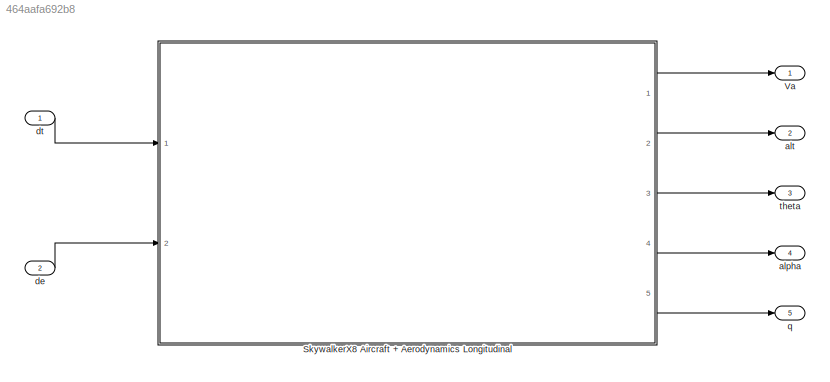
MODEL slx_464aafa692b8
KIND model
CONFIG AbsTol = auto
CONFIG EnableMultiTasking = off
CONFIG FixedStep = 0.001
CONFIG MaxStep = auto
CONFIG MinStep = auto
CONFIG RelTol = 1e-3
CONFIG SampleTimeConstraint = Unconstrained
CONFIG Solver = FixedStepAuto
CONFIG SolverName = FixedStepAuto
CONFIG StartTime = 0.0
CONFIG StopTime = 10.0
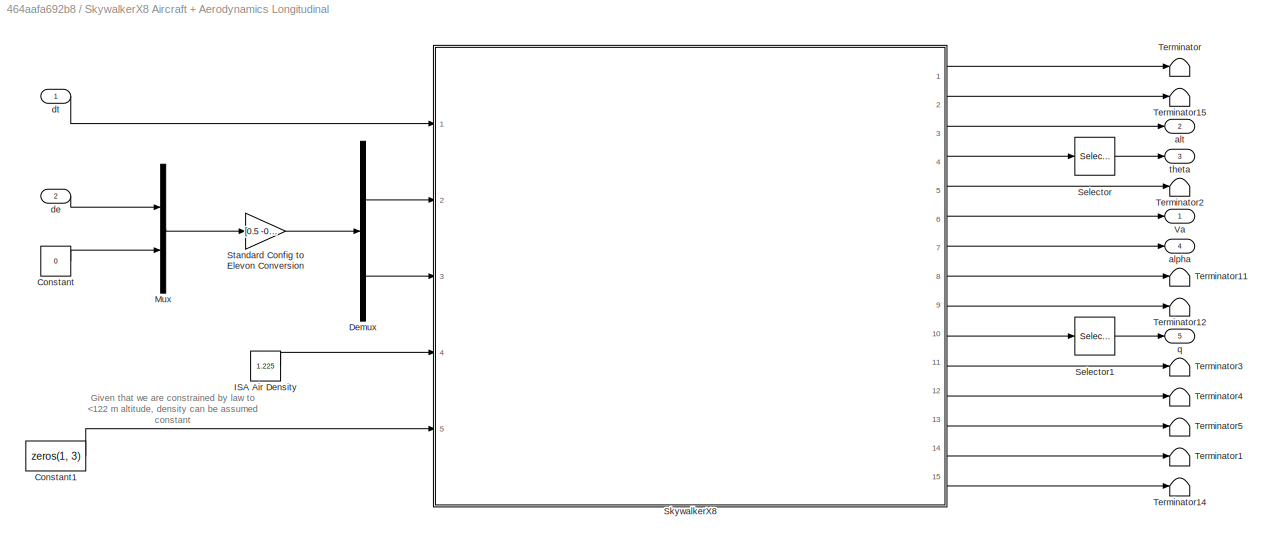
BLOCK [SubSystem] SkywalkerX8 Aircraft + Aerodynamics Longitudinal
  Ports = [2, 5]
  RequestExecContextInheritance = off
BLOCK [Constant] SkywalkerX8 Aircraft + Aerodynamics Longitudinal/Constant
  Value = 0
BLOCK [Constant] SkywalkerX8 Aircraft + Aerodynamics Longitudinal/Constant1
  Value = zeros(1, 3)
BLOCK [Demux] SkywalkerX8 Aircraft + Aerodynamics Longitudinal/Demux
  DisplayOption = bar
  Outputs = 2
  Ports = [1, 2]
BLOCK [Constant] SkywalkerX8 Aircraft + Aerodynamics Longitudinal/ISA Air Density
  Value = 1.225
BLOCK [Mux] SkywalkerX8 Aircraft + Aerodynamics Longitudinal/Mux
  DisplayOption = bar
  Inputs = 2
  Ports = [2, 1]
BLOCK [Selector] SkywalkerX8 Aircraft + Aerodynamics Longitudinal/Selector
  IndexOptions = Index vector (dialog)
  Indices = 2
  InputPortWidth = 3
  OutputSizes = 1
  Ports = [1, 1]
BLOCK [Selector] SkywalkerX8 Aircraft + Aerodynamics Longitudinal/Selector1
  IndexOptions = Index vector (dialog)
  Indices = 2
  InputPortWidth = 3
  OutputSizes = 1
  Ports = [1, 1]
BLOCK [ModelReference] SkywalkerX8 Aircraft + Aerodynamics Longitudinal/SkywalkerX8
  ModelNameDialog = SkywalkerX8_AircraftModel
  ModelReferenceVersion = 1.367
  Ports = [5, 15]
BLOCK [Gain] SkywalkerX8 Aircraft + Aerodynamics Longitudinal/Standard Config to Elevon Conversion
  Gain = [0.5 -0.5;0.5 0.5]
  Multiplication = Matrix(K*u)
  OutDataTypeStr = Inherit: Inherit via internal rule
  ParamDataTypeStr = Inherit: Inherit via internal rule
  SaturateOnIntegerOverflow = off
BLOCK [Terminator] SkywalkerX8 Aircraft + Aerodynamics Longitudinal/Terminator
BLOCK [Terminator] SkywalkerX8 Aircraft + Aerodynamics Longitudinal/Terminator1
BLOCK [Terminator] SkywalkerX8 Aircraft + Aerodynamics Longitudinal/Terminator11
BLOCK [Terminator] SkywalkerX8 Aircraft + Aerodynamics Longitudinal/Terminator12
BLOCK [Terminator] SkywalkerX8 Aircraft + Aerodynamics Longitudinal/Terminator14
BLOCK [Terminator] SkywalkerX8 Aircraft + Aerodynamics Longitudinal/Terminator15
BLOCK [Terminator] SkywalkerX8 Aircraft + Aerodynamics Longitudinal/Terminator2
BLOCK [Terminator] SkywalkerX8 Aircraft + Aerodynamics Longitudinal/Terminator3
BLOCK [Terminator] SkywalkerX8 Aircraft + Aerodynamics Longitudinal/Terminator4
BLOCK [Terminator] SkywalkerX8 Aircraft + Aerodynamics Longitudinal/Terminator5
BLOCK [Outport] SkywalkerX8 Aircraft + Aerodynamics Longitudinal/Va
  IconDisplay = Port number
BLOCK [Outport] SkywalkerX8 Aircraft + Aerodynamics Longitudinal/alpha
  IconDisplay = Port number
  Port = 4
BLOCK [Outport] SkywalkerX8 Aircraft + Aerodynamics Longitudinal/alt
  IconDisplay = Port number
  Port = 2
BLOCK [Inport] SkywalkerX8 Aircraft + Aerodynamics Longitudinal/de
  IconDisplay = Port number
  Port = 2
BLOCK [Inport] SkywalkerX8 Aircraft + Aerodynamics Longitudinal/dt
  IconDisplay = Port number
BLOCK [Outport] SkywalkerX8 Aircraft + Aerodynamics Longitudinal/q
  IconDisplay = Port number
  Port = 5
BLOCK [Outport] SkywalkerX8 Aircraft + Aerodynamics Longitudinal/theta
  IconDisplay = Port number
  Port = 3
BLOCK [Outport] Va
  IconDisplay = Port number
BLOCK [Outport] alpha
  IconDisplay = Port number
  Port = 4
BLOCK [Outport] alt
  IconDisplay = Port number
  Port = 2
BLOCK [Inport] de
  IconDisplay = Port number
  Port = 2
BLOCK [Inport] dt
  IconDisplay = Port number
BLOCK [Outport] q
  IconDisplay = Port number
  Port = 5
BLOCK [Outport] theta
  IconDisplay = Port number
  Port = 3
ANNOTATION SkywalkerX8 Aircraft + Aerodynamics Longitudinal: Given that we are constrained by law to <122 m altitude, density can be assumed constant
LINE SkywalkerX8 Aircraft + Aerodynamics Longitudinal/Constant1:1 -> SkywalkerX8 Aircraft + Aerodynamics Longitudinal/SkywalkerX8:5
LINE SkywalkerX8 Aircraft + Aerodynamics Longitudinal/Constant:1 -> SkywalkerX8 Aircraft + Aerodynamics Longitudinal/Mux:2
LINE SkywalkerX8 Aircraft + Aerodynamics Longitudinal/Demux:1 -> SkywalkerX8 Aircraft + Aerodynamics Longitudinal/SkywalkerX8:2
LINE SkywalkerX8 Aircraft + Aerodynamics Longitudinal/Demux:2 -> SkywalkerX8 Aircraft + Aerodynamics Longitudinal/SkywalkerX8:3
LINE SkywalkerX8 Aircraft + Aerodynamics Longitudinal/ISA Air Density:1 -> SkywalkerX8 Aircraft + Aerodynamics Longitudinal/SkywalkerX8:4
LINE SkywalkerX8 Aircraft + Aerodynamics Longitudinal/Mux:1 -> SkywalkerX8 Aircraft + Aerodynamics Longitudinal/Standard Config to Elevon Conversion:1
LINE SkywalkerX8 Aircraft + Aerodynamics Longitudinal/Selector1:1 -> SkywalkerX8 Aircraft + Aerodynamics Longitudinal/q:1
LINE SkywalkerX8 Aircraft + Aerodynamics Longitudinal/Selector:1 -> SkywalkerX8 Aircraft + Aerodynamics Longitudinal/theta:1
LINE SkywalkerX8 Aircraft + Aerodynamics Longitudinal/SkywalkerX8:1 -> SkywalkerX8 Aircraft + Aerodynamics Longitudinal/Terminator:1
LINE SkywalkerX8 Aircraft + Aerodynamics Longitudinal/SkywalkerX8:10 -> SkywalkerX8 Aircraft + Aerodynamics Longitudinal/Selector1:1
LINE SkywalkerX8 Aircraft + Aerodynamics Longitudinal/SkywalkerX8:11 -> SkywalkerX8 Aircraft + Aerodynamics Longitudinal/Terminator3:1
LINE SkywalkerX8 Aircraft + Aerodynamics Longitudinal/SkywalkerX8:12 -> SkywalkerX8 Aircraft + Aerodynamics Longitudinal/Terminator4:1
LINE SkywalkerX8 Aircraft + Aerodynamics Longitudinal/SkywalkerX8:13 -> SkywalkerX8 Aircraft + Aerodynamics Longitudinal/Terminator5:1
LINE SkywalkerX8 Aircraft + Aerodynamics Longitudinal/SkywalkerX8:14 -> SkywalkerX8 Aircraft + Aerodynamics Longitudinal/Terminator1:1
LINE SkywalkerX8 Aircraft + Aerodynamics Longitudinal/SkywalkerX8:15 -> SkywalkerX8 Aircraft + Aerodynamics Longitudinal/Terminator14:1
LINE SkywalkerX8 Aircraft + Aerodynamics Longitudinal/SkywalkerX8:2 -> SkywalkerX8 Aircraft + Aerodynamics Longitudinal/Terminator15:1
LINE SkywalkerX8 Aircraft + Aerodynamics Longitudinal/SkywalkerX8:3 -> SkywalkerX8 Aircraft + Aerodynamics Longitudinal/alt:1
LINE SkywalkerX8 Aircraft + Aerodynamics Longitudinal/SkywalkerX8:4 -> SkywalkerX8 Aircraft + Aerodynamics Longitudinal/Selector:1
LINE SkywalkerX8 Aircraft + Aerodynamics Longitudinal/SkywalkerX8:5 -> SkywalkerX8 Aircraft + Aerodynamics Longitudinal/Terminator2:1
LINE SkywalkerX8 Aircraft + Aerodynamics Longitudinal/SkywalkerX8:6 -> SkywalkerX8 Aircraft + Aerodynamics Longitudinal/Va:1
LINE SkywalkerX8 Aircraft + Aerodynamics Longitudinal/SkywalkerX8:7 -> SkywalkerX8 Aircraft + Aerodynamics Longitudinal/alpha:1
LINE SkywalkerX8 Aircraft + Aerodynamics Longitudinal/SkywalkerX8:8 -> SkywalkerX8 Aircraft + Aerodynamics Longitudinal/Terminator11:1
LINE SkywalkerX8 Aircraft + Aerodynamics Longitudinal/SkywalkerX8:9 -> SkywalkerX8 Aircraft + Aerodynamics Longitudinal/Terminator12:1
LINE SkywalkerX8 Aircraft + Aerodynamics Longitudinal/Standard Config to Elevon Conversion:1 -> SkywalkerX8 Aircraft + Aerodynamics Longitudinal/Demux:1
LINE SkywalkerX8 Aircraft + Aerodynamics Longitudinal/de:1 -> SkywalkerX8 Aircraft + Aerodynamics Longitudinal/Mux:1
LINE SkywalkerX8 Aircraft + Aerodynamics Longitudinal/dt:1 -> SkywalkerX8 Aircraft + Aerodynamics Longitudinal/SkywalkerX8:1
LINE SkywalkerX8 Aircraft + Aerodynamics Longitudinal:1 -> Va:1
LINE SkywalkerX8 Aircraft + Aerodynamics Longitudinal:2 -> alt:1
LINE SkywalkerX8 Aircraft + Aerodynamics Longitudinal:3 -> theta:1
LINE SkywalkerX8 Aircraft + Aerodynamics Longitudinal:4 -> alpha:1
LINE SkywalkerX8 Aircraft + Aerodynamics Longitudinal:5 -> q:1
LINE de:1 -> SkywalkerX8 Aircraft + Aerodynamics Longitudinal:2
LINE dt:1 -> SkywalkerX8 Aircraft + Aerodynamics Longitudinal:1
